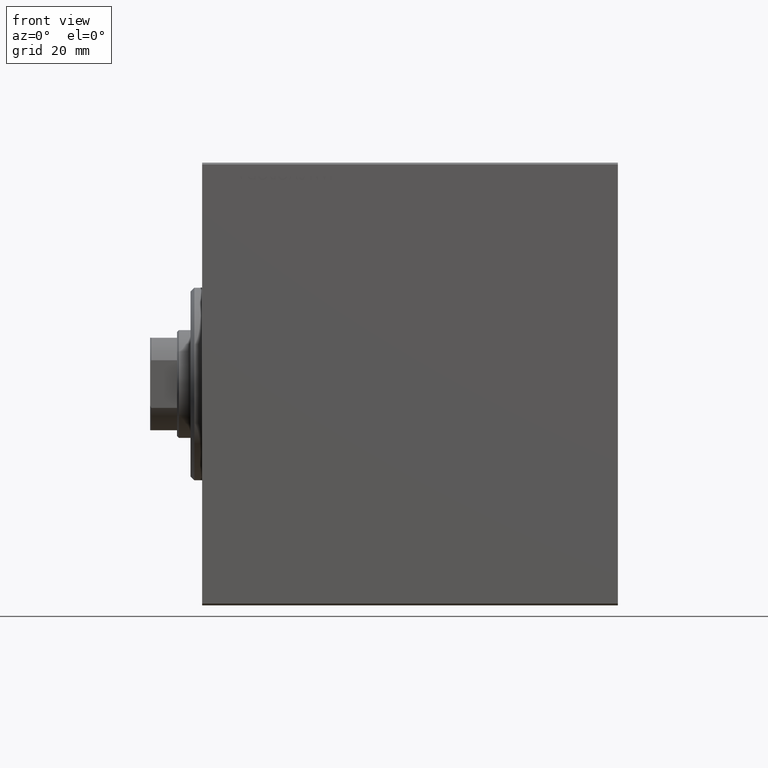
[diagram: clean part render]
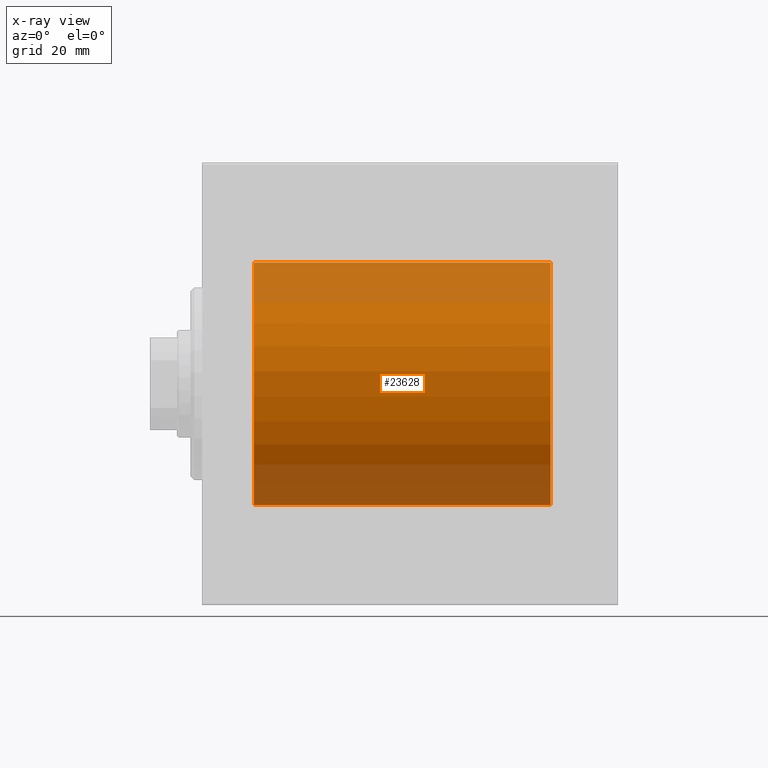
[diagram: x-ray — body ghosted, one internal face saturated and labeled with its STEP entity id]
A machine part, front view, then the same camera in x-ray: the body is ghosted and one INTERNAL B-rep face — a face not visible from any outside direction — is saturated and labeled: STEP entity #23628.
In plain terms, the highlighted cylindrical surface (partial cylindrical patch) has radius 31.5 mm, axis along (-1, -0, -0).
Its self-contained STEP definition (entity closure, byte-faithful):
#1401 = LINE ( 'NONE', #38247, #35610 ) ;
#1739 = LINE ( 'NONE', #22731, #24606 ) ;
#1836 = CIRCLE ( 'NONE', #3247, 31.50000000000000000 ) ;
#2195 = CARTESIAN_POINT ( 'NONE',  ( 13.49999999999999822, 0.000000000000000000, 0.000000000000000000 ) ) ;
#3247 = AXIS2_PLACEMENT_3D ( 'NONE', #2195, #43508, #23167 ) ;
#5659 = AXIS2_PLACEMENT_3D ( 'NONE', #43094, #35946, #36375 ) ;
#5764 = CARTESIAN_POINT ( 'NONE',  ( 13.49999999999999822, 0.000000000000000000, 31.50000000000000000 ) ) ;
#9190 = AXIS2_PLACEMENT_3D ( 'NONE', #9547, #9974, #37455 ) ;
#9547 = CARTESIAN_POINT ( 'NONE',  ( 90.50000000000000000, 0.000000000000000000, 0.000000000000000000 ) ) ;
#9974 = DIRECTION ( 'NONE',  ( -1.000000000000000000, -0.000000000000000000, -0.000000000000000000 ) ) ;
#14585 = EDGE_CURVE ( 'NONE', #25379, #21613, #1836, .T. ) ;
#17704 = DIRECTION ( 'NONE',  ( -1.000000000000000000, -0.000000000000000000, -0.000000000000000000 ) ) ;
#18898 = ORIENTED_EDGE ( 'NONE', *, *, #24235, .F. ) ;
#19549 = CARTESIAN_POINT ( 'NONE',  ( 13.49999999999999822, 3.857637417314162689E-15, -31.50000000000000000 ) ) ;
#21613 = VERTEX_POINT ( 'NONE', #5764 ) ;
#22731 = CARTESIAN_POINT ( 'NONE',  ( 90.50000000000000000, 0.000000000000000000, 31.50000000000000000 ) ) ;
#23167 = DIRECTION ( 'NONE',  ( 0.000000000000000000, 0.000000000000000000, 1.000000000000000000 ) ) ;
#23628 = ADVANCED_FACE ( 'NONE', ( #40157 ), #40602, .F. ) ;
#23848 = VERTEX_POINT ( 'NONE', #40941 ) ;
#23883 = EDGE_CURVE ( 'NONE', #36947, #25379, #1401, .T. ) ;
#24235 = EDGE_CURVE ( 'NONE', #36947, #23848, #30600, .T. ) ;
#24606 = VECTOR ( 'NONE', #28995, 1000.000000000000000 ) ;
#25379 = VERTEX_POINT ( 'NONE', #19549 ) ;
#28995 = DIRECTION ( 'NONE',  ( -1.000000000000000000, -0.000000000000000000, -0.000000000000000000 ) ) ;
#30600 = CIRCLE ( 'NONE', #5659, 31.50000000000000000 ) ;
#32177 = EDGE_LOOP ( 'NONE', ( #18898, #36468, #36654, #44025 ) ) ;
#35610 = VECTOR ( 'NONE', #17704, 1000.000000000000000 ) ;
#35946 = DIRECTION ( 'NONE',  ( -1.000000000000000000, 0.000000000000000000, 0.000000000000000000 ) ) ;
#35956 = CARTESIAN_POINT ( 'NONE',  ( 90.50000000000000000, 3.857637417314162689E-15, -31.50000000000000000 ) ) ;
#36375 = DIRECTION ( 'NONE',  ( 0.000000000000000000, 0.000000000000000000, 1.000000000000000000 ) ) ;
#36468 = ORIENTED_EDGE ( 'NONE', *, *, #23883, .T. ) ;
#36654 = ORIENTED_EDGE ( 'NONE', *, *, #14585, .T. ) ;
#36947 = VERTEX_POINT ( 'NONE', #35956 ) ;
#37455 = DIRECTION ( 'NONE',  ( 0.000000000000000000, 0.000000000000000000, 1.000000000000000000 ) ) ;
#38247 = CARTESIAN_POINT ( 'NONE',  ( 90.50000000000000000, 3.857637417314162689E-15, -31.50000000000000000 ) ) ;
#40157 = FACE_OUTER_BOUND ( 'NONE', #32177, .T. ) ;
#40602 = CYLINDRICAL_SURFACE ( 'NONE', #9190, 31.50000000000000000 ) ;
#40941 = CARTESIAN_POINT ( 'NONE',  ( 90.50000000000000000, 0.000000000000000000, 31.50000000000000000 ) ) ;
#41494 = EDGE_CURVE ( 'NONE', #23848, #21613, #1739, .T. ) ;
#43094 = CARTESIAN_POINT ( 'NONE',  ( 90.50000000000000000, 0.000000000000000000, 0.000000000000000000 ) ) ;
#43508 = DIRECTION ( 'NONE',  ( -1.000000000000000000, 0.000000000000000000, 0.000000000000000000 ) ) ;
#44025 = ORIENTED_EDGE ( 'NONE', *, *, #41494, .F. ) ;